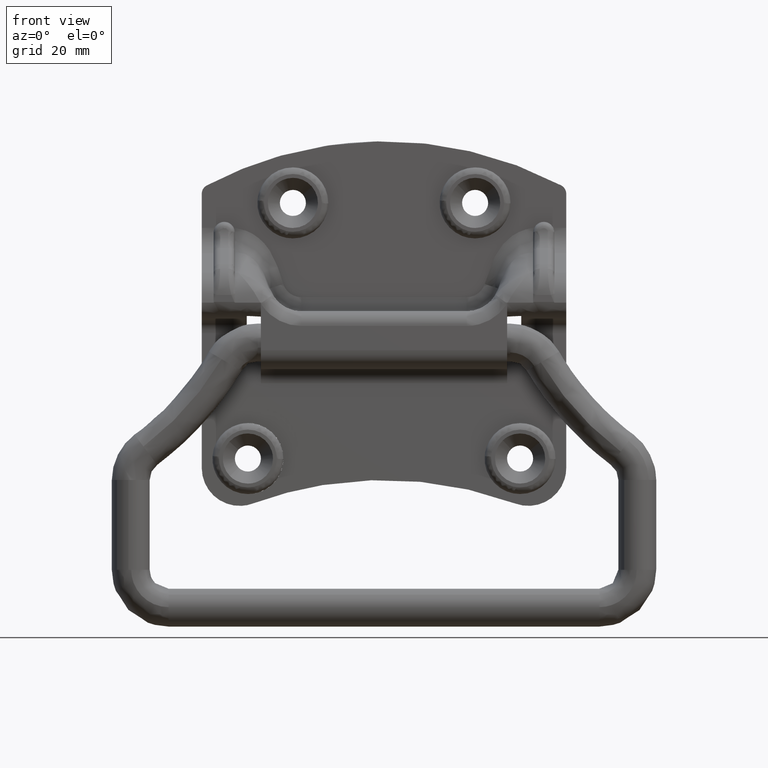
[diagram: clean part render]
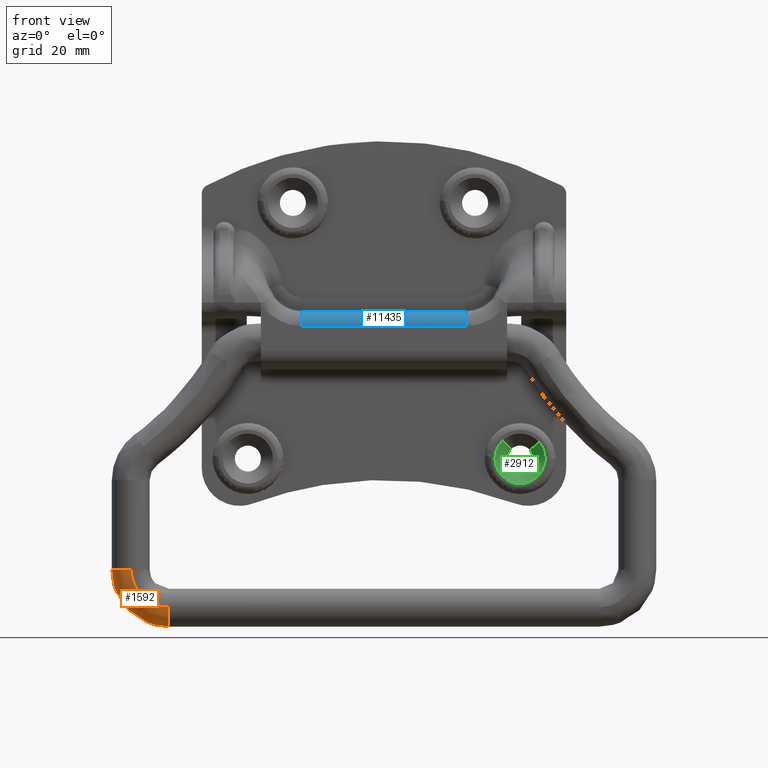
[diagram: same view with three faces highlighted in distinct colors, each labeled with its STEP entity id]
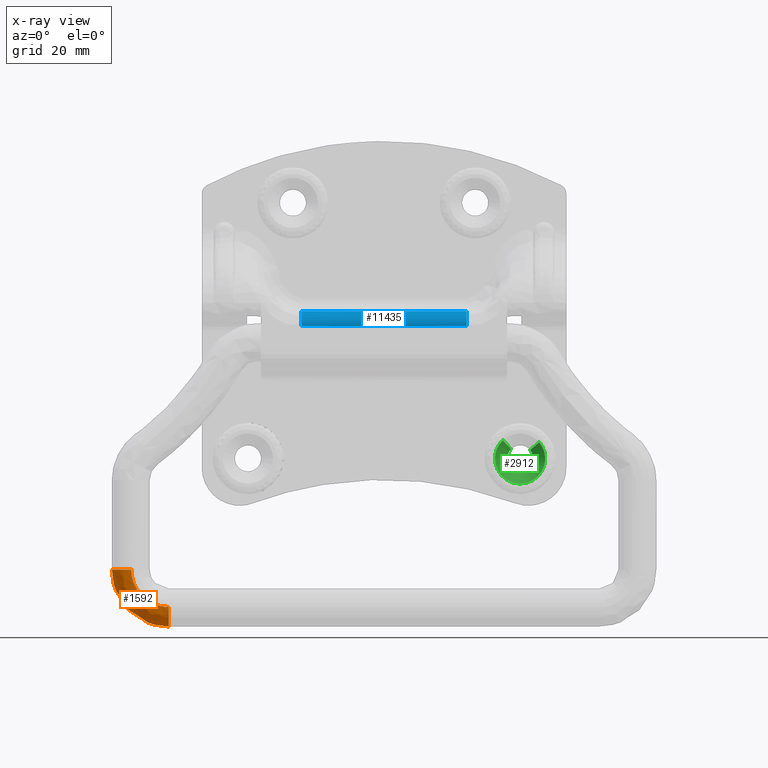
[diagram: x-ray of the same camera — body ghosted, the three highlighted faces saturated]
A machine part, front view with three faces highlighted in distinct colors.
The next image is the same camera in x-ray (body ghosted, the three faces saturated) — at least one of them is partly hidden behind the body in this view.
Their STEP definitions:

[orange] entity #1592 — the highlighted face is a freeform B-spline surface patch.
#282=CARTESIAN_POINT('',(-54.000920559504451,-3.968536118178781,-48.000030000128348));
#283=VERTEX_POINT('',#282);
#289=CARTESIAN_POINT('',(-53.399679618167333,-3.998736757131708,-48.000030000171932));
#290=VERTEX_POINT('',#289);
#291=CARTESIAN_POINT('',(-54.000920559504451,-3.968536118178781,-48.000030000128348));
#292=CARTESIAN_POINT('',(-53.801644791451750,-3.993688831971114,-48.000030000142232));
#293=CARTESIAN_POINT('',(-53.600471761583037,-4.003789095321118,-48.000030000156883));
#294=CARTESIAN_POINT('',(-53.399679618167333,-3.998736757131708,-48.000030000171932));
#295=B_SPLINE_CURVE_WITH_KNOTS('',3,(#291,#292,#293,#294),.UNSPECIFIED.,.F.,.U.,(4,4),(2.469184E-009,0.602577454556481),.UNSPECIFIED.);
#296=EDGE_CURVE('',#283,#290,#295,.T.);
#312=CARTESIAN_POINT('',(-53.600720382293517,3.998736757120123,-48.000030000058381));
#313=VERTEX_POINT('',#312);
#326=CARTESIAN_POINT('',(-57.500200000000000,3.356585E-016,-48.000030000000898));
#327=VERTEX_POINT('',#326);
#328=CARTESIAN_POINT('',(-53.600720382293517,3.998736757120123,-48.000030000058381));
#329=CARTESIAN_POINT('',(-53.954831321332463,3.989943115275216,-48.000030000053151));
#330=CARTESIAN_POINT('',(-54.596439696406136,3.887562239314816,-48.000030000043743));
#331=CARTESIAN_POINT('',(-55.461846898608222,3.522204212469874,-48.000030000030911));
#332=CARTESIAN_POINT('',(-56.254610885106359,2.960145212562828,-48.000030000019230));
#333=CARTESIAN_POINT('',(-56.862785211049818,2.238640064076924,-48.000030000010362));
#334=CARTESIAN_POINT('',(-57.364287439456362,1.223368175526807,-48.000030000002909));
#335=CARTESIAN_POINT('',(-57.500633274500622,0.483101603451783,-48.000030000000933));
#336=CARTESIAN_POINT('',(-57.500200000000000,3.356585E-016,-48.000030000000898));
#337=B_SPLINE_CURVE_WITH_KNOTS('',3,(#328,#329,#330,#331,#332,#333,#334,#335,#336),.UNSPECIFIED.,.F.,.U.,(4,1,1,1,1,1,4),(0.000000150360769,1.062666902203072,1.932130804343882,2.801622201855818,3.960838537534714,4.733714381024199,6.182804565165735),.UNSPECIFIED.);
#338=EDGE_CURVE('',#313,#327,#337,.T.);
#340=CARTESIAN_POINT('',(-56.401697355991502,-2.753418437719606,-48.000029999990723));
#341=VERTEX_POINT('',#340);
#342=CARTESIAN_POINT('',(-57.500200000000000,3.356585E-016,-48.000030000000898));
#343=CARTESIAN_POINT('',(-57.500581200033970,-0.474569995275441,-48.000029999985038));
#344=CARTESIAN_POINT('',(-57.317800632536922,-1.486538200151944,-48.000029999964937));
#345=CARTESIAN_POINT('',(-56.772430130214367,-2.363706640001458,-48.000029999976263));
#346=CARTESIAN_POINT('',(-56.401697355991502,-2.753418437719606,-48.000029999990723));
#347=B_SPLINE_CURVE_WITH_KNOTS('',3,(#342,#343,#344,#345,#346),.UNSPECIFIED.,.F.,.U.,(4,1,4),(0.000000059123960,1.423581111906912,3.036944296391610),.UNSPECIFIED.);
#348=EDGE_CURVE('',#327,#341,#347,.T.);
#441=CARTESIAN_POINT('',(-56.401697355991502,-2.753418437719606,-48.000029999990723));
#442=CARTESIAN_POINT('',(-56.067460392513183,-3.106271661573512,-48.000030000003783));
#443=CARTESIAN_POINT('',(-55.315145674250182,-3.652931262641313,-48.000030000041292));
#444=CARTESIAN_POINT('',(-54.426410024730032,-3.915108621342121,-48.000030000098640));
#445=CARTESIAN_POINT('',(-54.000920559504451,-3.968536118178781,-48.000030000128348));
#446=B_SPLINE_CURVE_WITH_KNOTS('',3,(#441,#442,#443,#444,#445),.UNSPECIFIED.,.F.,.U.,(4,1,4),(0.000000051091099,1.457907612472094,2.744327184003201),.UNSPECIFIED.);
#447=EDGE_CURVE('',#341,#283,#446,.T.);
#544=CARTESIAN_POINT('',(-45.500200000000113,-2.753418439405355,-58.901527354391789));
#545=VERTEX_POINT('',#544);
#551=CARTESIAN_POINT('',(-45.500199999999197,0.0,-60.000030000000002));
#552=VERTEX_POINT('',#551);
#553=CARTESIAN_POINT('',(-45.500199999999197,0.0,-60.000030000000002));
#554=CARTESIAN_POINT('',(-45.500200000000838,-0.537889830182075,-60.000712413121327));
#555=CARTESIAN_POINT('',(-45.500200000002337,-1.549554835718613,-59.792481294104853));
#556=CARTESIAN_POINT('',(-45.500200000001321,-2.409444232607455,-59.228473651086183));
#557=CARTESIAN_POINT('',(-45.500200000000113,-2.753418439405355,-58.901527354391789));
#558=B_SPLINE_CURVE_WITH_KNOTS('',3,(#553,#554,#555,#556,#557),.UNSPECIFIED.,.F.,.U.,(4,1,4),(0.000000059123462,1.613363244843306,3.036944298715720),.UNSPECIFIED.);
#559=EDGE_CURVE('',#552,#545,#558,.T.);
#561=CARTESIAN_POINT('',(-45.500200001273349,3.998736757022165,-56.100550386190321));
#562=VERTEX_POINT('',#561);
#563=CARTESIAN_POINT('',(-45.500200001273349,3.998736757022165,-56.100550386190321));
#564=CARTESIAN_POINT('',(-45.500200001136662,3.988459281550964,-56.519070787070092));
#565=CARTESIAN_POINT('',(-45.500200000906112,3.858162475692841,-57.224297259148393));
#566=CARTESIAN_POINT('',(-45.500200000629619,3.451407615413837,-58.071042099206529));
#567=CARTESIAN_POINT('',(-45.500200000392262,2.910383777449892,-58.796392892591157));
#568=CARTESIAN_POINT('',(-45.500200000194162,2.188867973175760,-59.404573515569567));
#569=CARTESIAN_POINT('',(-45.500200000036848,1.159143900491402,-59.882663611237817));
#570=CARTESIAN_POINT('',(-45.500199999999850,0.418632719086322,-60.000253901246410));
#571=CARTESIAN_POINT('',(-45.500199999999197,0.0,-60.000030000000002));
#572=B_SPLINE_CURVE_WITH_KNOTS('',3,(#563,#564,#565,#566,#567,#568,#569,#570,#571),.UNSPECIFIED.,.F.,.U.,(4,1,1,1,1,1,4),(0.000000150362339,1.255872437446884,2.125352024143014,2.801622199732796,3.960838534533254,4.926931211982964,6.182804560480287),.UNSPECIFIED.);
#573=EDGE_CURVE('',#562,#552,#572,.T.);
#605=CARTESIAN_POINT('',(-45.500199999984012,-3.998736757132020,-55.899509618179742));
#606=VERTEX_POINT('',#605);
#615=CARTESIAN_POINT('',(-45.500200000000113,-2.753418439405355,-58.901527354391789));
#616=CARTESIAN_POINT('',(-45.500199999998912,-3.133235478902902,-58.541911398417533));
#617=CARTESIAN_POINT('',(-45.500199999995793,-3.604262350100693,-57.874086508423439));
#618=CARTESIAN_POINT('',(-45.500199999989910,-3.951421064522891,-56.807381792853612));
#619=CARTESIAN_POINT('',(-45.500199999986052,-4.006690600124101,-56.213180724739111));
#620=CARTESIAN_POINT('',(-45.500199999984012,-3.998736757132020,-55.899509618179742));
#621=B_SPLINE_CURVE_WITH_KNOTS('',3,(#615,#616,#617,#618,#619,#620),.UNSPECIFIED.,.F.,.U.,(4,1,1,4),(0.000000033247771,1.568878182277715,2.405611991481065,3.346938499597786),.UNSPECIFIED.);
#622=EDGE_CURVE('',#545,#606,#621,.T.);
#1519=CARTESIAN_POINT('',(-45.500199999984012,-3.998736757132020,-55.899509618179742));
#1520=CARTESIAN_POINT('',(-46.308113654180431,-3.998736757132157,-55.899963041952859));
#1521=CARTESIAN_POINT('',(-47.406515393408931,-3.998736757132253,-55.729465714641741));
#1522=CARTESIAN_POINT('',(-48.828975289296309,-3.998736757132389,-55.190658799225183));
#1523=CARTESIAN_POINT('',(-49.911818124639098,-3.998736757132441,-54.603367789692861));
#1524=CARTESIAN_POINT('',(-51.077952875951183,-3.998736757132444,-53.670109319150619));
#1525=CARTESIAN_POINT('',(-52.178543201194863,-3.998736757132297,-52.345752666071803));
#1526=CARTESIAN_POINT('',(-53.130152411753727,-3.998736757132210,-50.455528200477367));
#1527=CARTESIAN_POINT('',(-53.400334917530408,-3.998736757131809,-48.904898379816309));
#1528=CARTESIAN_POINT('',(-53.399679618167333,-3.998736757131708,-48.000030000171932));
#1529=B_SPLINE_CURVE_WITH_KNOTS('',3,(#1519,#1520,#1521,#1522,#1523,#1524,#1525,#1526,#1527,#1528),.UNSPECIFIED.,.F.,.U.,(4,1,1,1,1,1,1,4),(0.000000199799848,2.423544095559162,3.296025042941869,4.556266836415040,6.107394077314165,7.755311909152761,9.694182186326634,12.408551425649900),.UNSPECIFIED.);
#1530=EDGE_CURVE('',#606,#290,#1529,.T.);
#1535=CARTESIAN_POINT('',(-45.500200001273349,3.998736757022165,-56.100550386190321));
#1536=CARTESIAN_POINT('',(-46.063514978737921,3.998736757029885,-56.100618650820252));
#1537=CARTESIAN_POINT('',(-47.223264268994740,3.998736757045593,-55.979139071388261));
#1538=CARTESIAN_POINT('',(-48.806070787069181,3.998736757066428,-55.456262829240501));
#1539=CARTESIAN_POINT('',(-50.306414908334737,3.998736757085620,-54.594128026106112));
#1540=CARTESIAN_POINT('',(-51.474668411066553,3.998736757099934,-53.548311509325131));
#1541=CARTESIAN_POINT('',(-52.373032011775422,3.998736757110323,-52.352223707433581));
#1542=CARTESIAN_POINT('',(-52.930655122776351,3.998736757116263,-51.293367288823113));
#1543=CARTESIAN_POINT('',(-53.445223870303138,3.998736757120937,-49.855513033823406));
#1544=CARTESIAN_POINT('',(-53.601030811829297,3.998736757121371,-48.762198969983359));
#1545=CARTESIAN_POINT('',(-53.600720382293517,3.998736757120123,-48.000030000058381));
#1546=B_SPLINE_CURVE_WITH_KNOTS('',3,(#1535,#1536,#1537,#1538,#1539,#1540,#1541,#1542,#1543,#1544,#1545),.UNSPECIFIED.,.F.,.U.,(4,1,1,1,1,1,1,1,4),(0.000000191199673,1.689947085529830,3.479318113845395,4.970484300041801,6.859166505579729,8.151524210147079,9.443849951256272,10.437952182932150,12.724347505175650),.UNSPECIFIED.);
#1547=EDGE_CURVE('',#562,#313,#1546,.T.);
#1552=CARTESIAN_POINT('',(-44.953403313123403,-3.997298130226133,-55.823194748432279));
#1553=CARTESIAN_POINT('',(-53.948936256449649,-3.997298130226133,-56.451933598791513));
#1554=CARTESIAN_POINT('',(-53.323569148797866,-3.997298130226132,-47.456165623955428));
#1555=CARTESIAN_POINT('',(-44.951414110596836,-3.998015305246202,-55.851654794838481));
#1556=CARTESIAN_POINT('',(-53.979672081868721,-3.998015305246202,-56.482680946748168));
#1557=CARTESIAN_POINT('',(-53.352029938796221,-3.998015305246201,-47.454187088940685));
#1558=CARTESIAN_POINT('',(-44.670603282451452,-4.099257138906549,-59.869289547297534));
#1559=CARTESIAN_POINT('',(-58.318572960196171,-4.099257138906547,-60.823208433369658));
#1560=CARTESIAN_POINT('',(-57.369769662330121,-4.099257138906551,-47.174882167200536));
#1561=CARTESIAN_POINT('',(-44.663594553064215,-0.100520381773350,-59.969565291444546));
#1562=CARTESIAN_POINT('',(-58.426867153462027,-0.100520381773350,-60.931543224989319));
#1563=CARTESIAN_POINT('',(-57.470048026439684,-0.100520381773350,-47.167911023580686));
#1564=CARTESIAN_POINT('',(-44.656585823676956,3.898216375359847,-60.069841035591558));
#1565=CARTESIAN_POINT('',(-58.535161346727861,3.898216375359847,-61.039878016608959));
#1566=CARTESIAN_POINT('',(-57.570326390549283,3.898216375359848,-47.160939879960871));
#1567=CARTESIAN_POINT('',(-44.937397550694001,3.999458533093938,-56.052193422737929));
#1568=CARTESIAN_POINT('',(-54.196246579637311,3.999458533093937,-56.699336636017598));
#1569=CARTESIAN_POINT('',(-53.552573806284769,3.999458533093938,-47.440245695752289));
#1570=CARTESIAN_POINT('',(-44.939387641448363,4.000176028350277,-56.023720668221614));
#1571=CARTESIAN_POINT('',(-54.165497029916914,4.000176028350277,-56.668575558614471));
#1572=CARTESIAN_POINT('',(-53.524100307844286,4.000176028350277,-47.442225114231547));
#1580=(BOUNDED_SURFACE()B_SPLINE_SURFACE(2,2,((#1552,#1555,#1558,#1561,#1564,#1567,#1570),(#1553,#1556,#1559,#1562,#1565,#1568,#1571),(#1554,#1557,#1560,#1563,#1566,#1569,#1572)),.UNSPECIFIED.,.F.,.F.,.U.)B_SPLINE_SURFACE_WITH_KNOTS((3,3),(3,1,2,1,3),(0.0,21.866145446268529),(0.0,0.067469201195694,6.694886199165215,13.322303197134740,13.389802795675170),.UNSPECIFIED.)GEOMETRIC_REPRESENTATION_ITEM()RATIONAL_B_SPLINE_SURFACE(((0.922186175173400,0.919452751347161,0.648218452934816,0.916719327520922,0.648218452934816,0.919453982854647,0.922188638188372),(0.606844315454811,0.605045586786633,0.426559944105039,0.603246858118455,0.426559944105039,0.605046397179738,0.606845936241020),(0.927322631695822,0.924573983055962,0.651828945035183,0.921825334416103,0.651828945035183,0.924575221422784,0.927325108429466)))REPRESENTATION_ITEM('')SURFACE());
#1581=ORIENTED_EDGE('',*,*,#338,.F.);
#1582=ORIENTED_EDGE('',*,*,#1547,.F.);
#1583=ORIENTED_EDGE('',*,*,#573,.T.);
#1584=ORIENTED_EDGE('',*,*,#559,.T.);
#1585=ORIENTED_EDGE('',*,*,#622,.T.);
#1586=ORIENTED_EDGE('',*,*,#1530,.T.);
#1587=ORIENTED_EDGE('',*,*,#296,.F.);
#1588=ORIENTED_EDGE('',*,*,#447,.F.);
#1589=ORIENTED_EDGE('',*,*,#348,.F.);
#1590=EDGE_LOOP('',(#1581,#1582,#1583,#1584,#1585,#1586,#1587,#1588,#1589));
#1591=FACE_OUTER_BOUND('',#1590,.T.);
#1592=ADVANCED_FACE('',(#1591),#1580,.T.);

[blue] entity #11435 — the highlighted face is a freeform B-spline surface patch.
#11353=CARTESIAN_POINT('',(17.469295052986400,-2.900000000000000,6.599970000000100));
#11354=VERTEX_POINT('',#11353);
#11355=CARTESIAN_POINT('',(17.469295052986400,-6.0,3.499970000000100));
#11356=VERTEX_POINT('',#11355);
#11357=CARTESIAN_POINT('',(17.469295052986400,-2.900000000000000,6.599970000000100));
#11358=CARTESIAN_POINT('',(17.469295052986400,-3.331263668971247,6.600565126950746));
#11359=CARTESIAN_POINT('',(17.469295052986482,-4.040875744743539,6.449257032642025));
#11360=CARTESIAN_POINT('',(17.469295052986279,-4.912493907744356,5.912204303268770));
#11361=CARTESIAN_POINT('',(17.469295052986521,-5.428954736078059,5.342287885594287));
#11362=CARTESIAN_POINT('',(17.469295052986261,-5.870873458689844,4.539426481898131));
#11363=CARTESIAN_POINT('',(17.469295052986471,-6.000593673309377,3.931249389255948));
#11364=CARTESIAN_POINT('',(17.469295052986400,-6.0,3.499970000000100));
#11365=B_SPLINE_CURVE_WITH_KNOTS('',3,(#11357,#11358,#11359,#11360,#11361,#11362,#11363,#11364),.UNSPECIFIED.,.F.,.U.,(4,1,1,1,1,4),(0.000000267310226,1.293487777944016,2.130489995992828,3.043459188445894,3.576103627788026,4.869590807453381),.UNSPECIFIED.);
#11366=EDGE_CURVE('',#11354,#11356,#11365,.T.);
#11392=CARTESIAN_POINT('',(18.342759805635719,-2.818851460245592,6.598907707424326));
#11393=CARTESIAN_POINT('',(-18.364596424451960,-2.818851460245592,6.598907707424326));
#11394=CARTESIAN_POINT('',(18.342759805635726,-6.232453197116347,6.688296014774465));
#11395=CARTESIAN_POINT('',(-18.364596424451964,-6.232453197116347,6.688296014774465));
#11396=CARTESIAN_POINT('',(18.342759805635726,-5.992325866033115,3.281977481177703));
#11397=CARTESIAN_POINT('',(-18.364596424451964,-5.992325866033115,3.281977481177703));
#11405=(BOUNDED_SURFACE()B_SPLINE_SURFACE(1,2,((#11392,#11394,#11396),(#11393,#11395,#11397)),.UNSPECIFIED.,.F.,.F.,.U.)B_SPLINE_SURFACE_WITH_KNOTS((2,2),(3,3),(0.0,36.707356230087683),(0.0,5.490541607775327),.UNSPECIFIED.)GEOMETRIC_REPRESENTATION_ITEM()RATIONAL_B_SPLINE_SURFACE(((1.0,0.670944202756172,0.996392688959052),(1.0,0.670944202756172,0.996392688959052)))REPRESENTATION_ITEM('')SURFACE());
#11406=CARTESIAN_POINT('',(-17.469295052986400,-2.900000000000000,6.599970000000100));
#11407=VERTEX_POINT('',#11406);
#11408=CARTESIAN_POINT('',(-17.469295052986400,-6.0,3.499970000000100));
#11409=VERTEX_POINT('',#11408);
#11410=CARTESIAN_POINT('',(-17.469295052986400,-2.900000000000000,6.599970000000100));
#11411=CARTESIAN_POINT('',(-17.469295052986379,-3.229718770561963,6.600141261242055));
#11412=CARTESIAN_POINT('',(-17.469295052986489,-3.787571940676075,6.510100547475921));
#11413=CARTESIAN_POINT('',(-17.469295052986340,-4.460313343176028,6.201842513605260));
#11414=CARTESIAN_POINT('',(-17.469295052986450,-5.079430512932284,5.754639153968012));
#11415=CARTESIAN_POINT('',(-17.469295052986450,-5.552838239542813,5.177691044571898));
#11416=CARTESIAN_POINT('',(-17.469295052986269,-5.914161667143978,4.362146027499962));
#11417=CARTESIAN_POINT('',(-17.469295052986510,-6.000198759515921,3.829695907345824));
#11418=CARTESIAN_POINT('',(-17.469295052986400,-6.0,3.499970000000100));
#11419=B_SPLINE_CURVE_WITH_KNOTS('',3,(#11410,#11411,#11412,#11413,#11414,#11415,#11416,#11417,#11418),.UNSPECIFIED.,.F.,.U.,(4,1,1,1,1,1,4),(0.000000267310220,0.989122519632051,1.673938186274226,2.206589055300094,3.271754642367743,3.880468643749723,4.869590807453321),.UNSPECIFIED.);
#11420=EDGE_CURVE('',#11407,#11409,#11419,.T.);
#11421=ORIENTED_EDGE('',*,*,#11420,.T.);
#11422=CARTESIAN_POINT('',(17.469295052986400,-6.0,3.499970000000100));
#11423=CARTESIAN_POINT('',(-17.469295052986400,-6.0,3.499970000000100));
#11424=QUASI_UNIFORM_CURVE('',1,(#11422,#11423),.UNSPECIFIED.,.F.,.U.);
#11425=EDGE_CURVE('',#11356,#11409,#11424,.T.);
#11426=ORIENTED_EDGE('',*,*,#11425,.F.);
#11427=ORIENTED_EDGE('',*,*,#11366,.F.);
#11428=CARTESIAN_POINT('',(-17.469295052986400,-2.900000000000000,6.599970000000100));
#11429=CARTESIAN_POINT('',(17.469295052986400,-2.900000000000000,6.599970000000100));
#11430=QUASI_UNIFORM_CURVE('',1,(#11428,#11429),.UNSPECIFIED.,.F.,.U.);
#11431=EDGE_CURVE('',#11407,#11354,#11430,.T.);
#11432=ORIENTED_EDGE('',*,*,#11431,.F.);
#11433=EDGE_LOOP('',(#11421,#11426,#11427,#11432));
#11434=FACE_OUTER_BOUND('',#11433,.T.);
#11435=ADVANCED_FACE('',(#11434),#11405,.T.);

[green] entity #2912 — the highlighted face is a freeform B-spline surface patch.
#2715=CARTESIAN_POINT('',(32.796865543787113,2.999999712656469,-21.077596658536041));
#2716=VERTEX_POINT('',#2715);
#2728=CARTESIAN_POINT('',(25.101741369570458,3.000000290988762,-20.655546487768749));
#2729=VERTEX_POINT('',#2728);
#2739=CARTESIAN_POINT('',(26.857044908767239,5.549999967270736,-22.505250471210879));
#2740=VERTEX_POINT('',#2739);
#2741=CARTESIAN_POINT('',(26.857044908767239,5.549999967270736,-22.505250471210879));
#2742=CARTESIAN_POINT('',(25.101741369570458,3.000000290988762,-20.655546487768749));
#2743=QUASI_UNIFORM_CURVE('',1,(#2741,#2742),.UNSPECIFIED.,.F.,.U.);
#2744=EDGE_CURVE('',#2740,#2729,#2743,.T.);
#2756=CARTESIAN_POINT('',(30.849798009241830,5.549999975040414,-22.724239401925839));
#2757=VERTEX_POINT('',#2756);
#2767=CARTESIAN_POINT('',(30.849798009241830,5.549999975040414,-22.724239401925839));
#2768=CARTESIAN_POINT('',(32.796865543787113,2.999999712656469,-21.077596658536041));
#2769=QUASI_UNIFORM_CURVE('',1,(#2767,#2768),.UNSPECIFIED.,.F.,.U.);
#2770=EDGE_CURVE('',#2757,#2716,#2769,.T.);
#2775=CARTESIAN_POINT('',(26.900927520546698,5.613749970459562,-22.551493095345609));
#2776=CARTESIAN_POINT('',(24.952390615892313,5.613749970459562,-24.400585574798921));
#2777=CARTESIAN_POINT('',(26.801483095345610,5.613749970459562,-26.349122479453300));
#2778=CARTESIAN_POINT('',(28.650575574798911,5.613749970459562,-28.297659384107689));
#2779=CARTESIAN_POINT('',(30.599112479453311,5.613749970459562,-26.448566904654388));
#2780=CARTESIAN_POINT('',(32.439220008137283,5.613749970459563,-24.702370060988006));
#2781=CARTESIAN_POINT('',(30.801121346398965,5.613749970459562,-22.765405448931027));
#2782=CARTESIAN_POINT('',(25.056761099864310,2.934656250738511,-20.608147173519988));
#2783=CARTESIAN_POINT('',(21.164878273384303,2.934656250738510,-24.301406073655674));
#2784=CARTESIAN_POINT('',(24.858137173519989,2.934656250738511,-28.193288900135691));
#2785=CARTESIAN_POINT('',(28.551396073655681,2.934656250738510,-32.085171726615698));
#2786=CARTESIAN_POINT('',(32.443278900135702,2.934656250738511,-28.391912826480009));
#2787=CARTESIAN_POINT('',(36.118591835012865,2.934656250738511,-24.904171079692723));
#2788=CARTESIAN_POINT('',(32.846758474058333,2.934656250738511,-21.035402009341873));
#2796=(BOUNDED_SURFACE()B_SPLINE_SURFACE(2,1,((#2775,#2782),(#2776,#2783),(#2777,#2784),(#2778,#2785),(#2779,#2786),(#2780,#2787),(#2781,#2788)),.UNSPECIFIED.,.F.,.F.,.U.)B_SPLINE_SURFACE_WITH_KNOTS((3,2,2,3),(2,2),(0.0,8.889592543200841,17.779185086401679,26.313193927874490),(0.0,3.788810673298097),.UNSPECIFIED.)GEOMETRIC_REPRESENTATION_ITEM()RATIONAL_B_SPLINE_SURFACE(((1.0,1.0),(0.707106781186548,0.707106781186548),(1.0,1.0),(0.707106781186548,0.707106781186548),(1.0,1.0),(0.718822509939086,0.718822509939086),(0.977505800795127,0.977505800795127)))REPRESENTATION_ITEM('')SURFACE());
#2797=CARTESIAN_POINT('',(34.050019971179552,3.0,-24.500027668895449));
#2798=VERTEX_POINT('',#2797);
#2799=CARTESIAN_POINT('',(34.050019971179552,3.0,-24.500027668895449));
#2800=CARTESIAN_POINT('',(34.050130001060289,2.999999964206011,-24.073700092951249));
#2801=CARTESIAN_POINT('',(33.960661786553750,2.999999902386812,-23.337396855810098));
#2802=CARTESIAN_POINT('',(33.558382844599059,2.999999803465877,-22.159190094509871));
#2803=CARTESIAN_POINT('',(33.122378157020158,2.999999744946736,-21.462192715661029));
#2804=CARTESIAN_POINT('',(32.796865543787113,2.999999712656469,-21.077596658536041));
#2805=B_SPLINE_CURVE_WITH_KNOTS('',3,(#2799,#2800,#2801,#2802,#2803,#2804),.UNSPECIFIED.,.F.,.U.,(4,1,1,4),(0.000000033288707,1.278982240453265,2.209120339862403,3.720644472905163),.UNSPECIFIED.);
#2806=EDGE_CURVE('',#2798,#2716,#2805,.T.);
#2807=ORIENTED_EDGE('',*,*,#2806,.T.);
#2808=ORIENTED_EDGE('',*,*,#2770,.F.);
#2809=CARTESIAN_POINT('',(31.500020000000010,5.549999971180061,-24.500030031317529));
#2810=VERTEX_POINT('',#2809);
#2811=CARTESIAN_POINT('',(31.500020000000010,5.549999971180061,-24.500030031317529));
#2812=CARTESIAN_POINT('',(31.500177228170589,5.549999971835844,-24.198365972206780));
#2813=CARTESIAN_POINT('',(31.393054643565630,5.549999973234429,-23.555001407015968));
#2814=CARTESIAN_POINT('',(31.070814525204060,5.549999974473374,-22.985085736687662));
#2815=CARTESIAN_POINT('',(30.849798009241830,5.549999975040414,-22.724239401925839));
#2816=B_SPLINE_CURVE_WITH_KNOTS('',3,(#2811,#2812,#2813,#2814,#2815),.UNSPECIFIED.,.F.,.U.,(4,1,4),(0.000000068989376,0.904956725912055,1.930524165934074),.UNSPECIFIED.);
#2817=EDGE_CURVE('',#2810,#2757,#2816,.T.);
#2818=ORIENTED_EDGE('',*,*,#2817,.F.);
#2819=CARTESIAN_POINT('',(30.525810613304440,5.549999971180061,-26.599808021640321));
#2820=VERTEX_POINT('',#2819);
#2821=CARTESIAN_POINT('',(30.525810613304440,5.549999971180061,-26.599808021640321));
#2822=CARTESIAN_POINT('',(30.811233459732978,5.549999971180061,-26.359044240606210));
#2823=CARTESIAN_POINT('',(31.171216144542210,5.549999971180066,-25.898874391874291));
#2824=CARTESIAN_POINT('',(31.448025670993641,5.549999971180055,-25.147068927071000));
#2825=CARTESIAN_POINT('',(31.500074858235180,5.549999971180075,-24.724022994147781));
#2826=CARTESIAN_POINT('',(31.500020000000010,5.549999971180061,-24.500030031317529));
#2827=B_SPLINE_CURVE_WITH_KNOTS('',3,(#2821,#2822,#2823,#2824,#2825,#2826),.UNSPECIFIED.,.F.,.U.,(4,1,1,4),(0.000000079176572,1.119987707545788,1.717291960902377,2.389277790734225),.UNSPECIFIED.);
#2828=EDGE_CURVE('',#2820,#2810,#2827,.T.);
#2829=ORIENTED_EDGE('',*,*,#2828,.F.);
#2830=CARTESIAN_POINT('',(28.750019999999999,5.549999971180061,-27.250029999999999));
#2831=VERTEX_POINT('',#2830);
#2832=CARTESIAN_POINT('',(28.750019999999999,5.549999971180061,-27.250029999999999));
#2833=CARTESIAN_POINT('',(29.091909889788148,5.549999971180061,-27.250349019562599));
#2834=CARTESIAN_POINT('',(29.735157181432388,5.549999971180067,-27.128378649731680));
#2835=CARTESIAN_POINT('',(30.295574896786430,5.549999971180060,-26.794725187303619));
#2836=CARTESIAN_POINT('',(30.525810613304440,5.549999971180061,-26.599808021640321));
#2837=B_SPLINE_CURVE_WITH_KNOTS('',3,(#2832,#2833,#2834,#2835,#2836),.UNSPECIFIED.,.F.,.U.,(4,1,4),(0.000000068990054,1.025567497898419,1.930524145012811),.UNSPECIFIED.);
#2838=EDGE_CURVE('',#2831,#2820,#2837,.T.);
#2839=ORIENTED_EDGE('',*,*,#2838,.F.);
#2840=CARTESIAN_POINT('',(26.755240487894390,5.549999971180061,-26.393005080417371));
#2841=VERTEX_POINT('',#2840);
#2842=CARTESIAN_POINT('',(26.755240487894390,5.549999971180061,-26.393005080417371));
#2843=CARTESIAN_POINT('',(26.995083340905229,5.549999971180063,-26.646224722378928));
#2844=CARTESIAN_POINT('',(27.611316468436140,5.549999971180060,-27.086671541242630));
#2845=CARTESIAN_POINT('',(28.354716065948072,5.549999971180057,-27.250563269150270));
#2846=CARTESIAN_POINT('',(28.750019999999999,5.549999971180061,-27.250029999999999));
#2847=B_SPLINE_CURVE_WITH_KNOTS('',3,(#2842,#2843,#2844,#2845,#2846),.UNSPECIFIED.,.F.,.U.,(4,1,4),(0.000000080923781,1.046221311476511,2.231899574352401),.UNSPECIFIED.);
#2848=EDGE_CURVE('',#2841,#2831,#2847,.T.);
#2849=ORIENTED_EDGE('',*,*,#2848,.F.);
#2850=CARTESIAN_POINT('',(26.000019999999999,5.549999971180061,-24.500029968682490));
#2851=VERTEX_POINT('',#2850);
#2852=CARTESIAN_POINT('',(26.000019999999999,5.549999971180061,-24.500029968682490));
#2853=CARTESIAN_POINT('',(25.999577673556800,5.549999971180067,-24.869811540494709));
#2854=CARTESIAN_POINT('',(26.142669391854231,5.549999971180045,-25.565375813565218));
#2855=CARTESIAN_POINT('',(26.530484591693011,5.549999971180067,-26.156501999766078));
#2856=CARTESIAN_POINT('',(26.755240487894390,5.549999971180061,-26.393005080417371));
#2857=B_SPLINE_CURVE_WITH_KNOTS('',3,(#2852,#2853,#2854,#2855,#2856),.UNSPECIFIED.,.F.,.U.,(4,1,4),(0.000000078315921,1.109174644507134,2.087899107859039),.UNSPECIFIED.);
#2858=EDGE_CURVE('',#2851,#2841,#2857,.T.);
#2859=ORIENTED_EDGE('',*,*,#2858,.F.);
#2860=CARTESIAN_POINT('',(26.857044908767239,5.549999967270736,-22.505250471210879));
#2861=CARTESIAN_POINT('',(26.637655448769220,5.549999967678210,-22.713167064383939));
#2862=CARTESIAN_POINT('',(26.311336180986739,5.549999968526298,-23.145913340438678));
#2863=CARTESIAN_POINT('',(26.050636803761758,5.549999969904341,-23.849083038479950));
#2864=CARTESIAN_POINT('',(25.999988953513039,5.549999970770011,-24.290795196425790));
#2865=CARTESIAN_POINT('',(26.000019999999999,5.549999971180061,-24.500029968682490));
#2866=B_SPLINE_CURVE_WITH_KNOTS('',3,(#2860,#2861,#2862,#2863,#2864,#2865),.UNSPECIFIED.,.F.,.U.,(4,1,1,4),(0.000000080922803,0.906730104812286,1.604173580084018,2.231899554603644),.UNSPECIFIED.);
#2867=EDGE_CURVE('',#2740,#2851,#2866,.T.);
#2868=ORIENTED_EDGE('',*,*,#2867,.F.);
#2869=ORIENTED_EDGE('',*,*,#2744,.T.);
#2870=CARTESIAN_POINT('',(23.450020028820461,3.0,-24.500032331104599));
#2871=VERTEX_POINT('',#2870);
#2872=CARTESIAN_POINT('',(25.101741369570458,3.000000290988762,-20.655546487768749));
#2873=CARTESIAN_POINT('',(24.841692391338309,3.000000272315884,-20.902248987018918));
#2874=CARTESIAN_POINT('',(24.386660205972170,3.000000232245996,-21.431644363106049));
#2875=CARTESIAN_POINT('',(23.911224532925289,3.000000168451815,-22.274480648239159));
#2876=CARTESIAN_POINT('',(23.549144435895780,3.000000091560008,-23.290359846441511));
#2877=CARTESIAN_POINT('',(23.449866264791410,3.000000035610936,-24.029547807226930));
#2878=CARTESIAN_POINT('',(23.450020028820461,3.0,-24.500032331104599));
#2879=B_SPLINE_CURVE_WITH_KNOTS('',3,(#2872,#2873,#2874,#2875,#2876,#2877,#2878),.UNSPECIFIED.,.F.,.U.,(4,1,1,1,4),(0.000000056075406,1.075348720413084,2.083519476619960,2.889993267266540,4.301394713418155),.UNSPECIFIED.);
#2880=EDGE_CURVE('',#2729,#2871,#2879,.T.);
#2881=ORIENTED_EDGE('',*,*,#2880,.T.);
#2882=CARTESIAN_POINT('',(28.750019999999999,3.0,-29.800029971180059));
#2883=VERTEX_POINT('',#2882);
#2884=CARTESIAN_POINT('',(23.450020028820461,3.0,-24.500032331104599));
#2885=CARTESIAN_POINT('',(23.449925142597191,3.000000000000004,-24.911964731379289));
#2886=CARTESIAN_POINT('',(23.541494629819830,2.999999999999998,-25.692405018836201));
#2887=CARTESIAN_POINT('',(23.945581006741492,3.000000000000008,-26.844329329201951));
#2888=CARTESIAN_POINT('',(24.564991664787581,2.999999999999990,-27.822412287284589));
#2889=CARTESIAN_POINT('',(25.289049672088989,3.000000000000013,-28.546348225905870));
#2890=CARTESIAN_POINT('',(26.120393837918879,2.999999999999997,-29.139585196349291));
#2891=CARTESIAN_POINT('',(27.232507474041309,2.999999999999974,-29.649049524137691));
#2892=CARTESIAN_POINT('',(28.207999188114130,3.000000000000056,-29.800290974267909));
#2893=CARTESIAN_POINT('',(28.750019999999999,3.0,-29.800029971180059));
#2894=B_SPLINE_CURVE_WITH_KNOTS('',3,(#2884,#2885,#2886,#2887,#2888,#2889,#2890,#2891,#2892,#2893),.UNSPECIFIED.,.F.,.U.,(4,1,1,1,1,1,1,4),(0.000000211777282,1.235778466384330,2.341484089561535,3.642352596582439,4.682920254041875,5.398402337566479,6.699255370837391,8.325271410130897),.UNSPECIFIED.);
#2895=EDGE_CURVE('',#2871,#2883,#2894,.T.);
#2896=ORIENTED_EDGE('',*,*,#2895,.T.);
#2897=CARTESIAN_POINT('',(28.750019999999999,3.0,-29.800029971180059));
#2898=CARTESIAN_POINT('',(29.161952514535191,3.0,-29.800124694002871));
#2899=CARTESIAN_POINT('',(29.942392588965411,3.000000000000005,-29.708554922558470));
#2900=CARTESIAN_POINT('',(31.094321165677030,3.0,-29.304467366659850));
#2901=CARTESIAN_POINT('',(31.998539643198100,2.999999999999990,-28.731774962254089));
#2902=CARTESIAN_POINT('',(32.911904353272327,3.000000000000010,-27.862450508708871));
#2903=CARTESIAN_POINT('',(33.594405105337820,2.999999999999994,-26.813442960119371));
#2904=CARTESIAN_POINT('',(33.981980540668431,3.000000000000006,-25.562341007742070));
#2905=CARTESIAN_POINT('',(34.050042056311412,2.999999999999992,-24.825226892296651));
#2906=CARTESIAN_POINT('',(34.050019971179552,3.0,-24.500027668895449));
#2907=B_SPLINE_CURVE_WITH_KNOTS('',3,(#2897,#2898,#2899,#2900,#2901,#2902,#2903,#2904,#2905,#2906),.UNSPECIFIED.,.F.,.U.,(4,1,1,1,1,1,1,4),(0.000000210984085,1.235778856208449,2.341484827731951,3.642353746199690,4.422768621365573,6.113872037896397,7.349663633041801,8.325274037845405),.UNSPECIFIED.);
#2908=EDGE_CURVE('',#2883,#2798,#2907,.T.);
#2909=ORIENTED_EDGE('',*,*,#2908,.T.);
#2910=EDGE_LOOP('',(#2807,#2808,#2818,#2829,#2839,#2849,#2859,#2868,#2869,#2881,#2896,#2909));
#2911=FACE_OUTER_BOUND('',#2910,.T.);
#2912=ADVANCED_FACE('',(#2911),#2796,.F.);